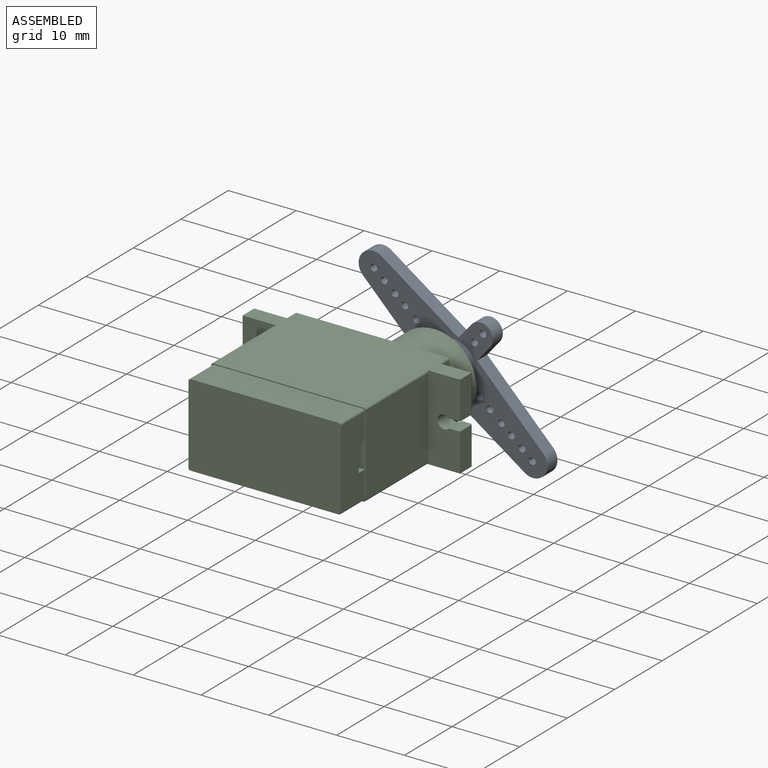
[diagram: assembled view]
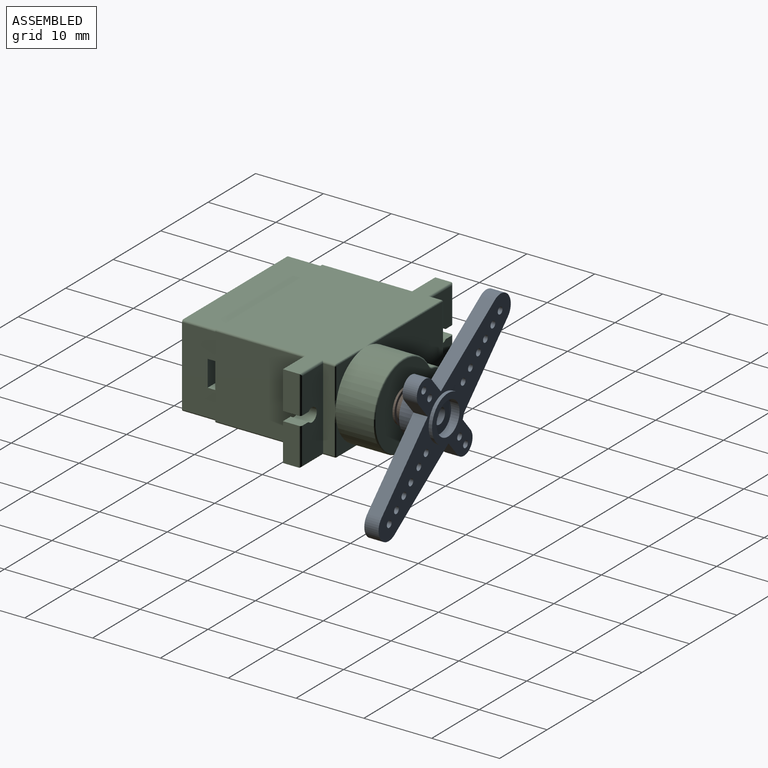
[diagram: assembled view, second angle]
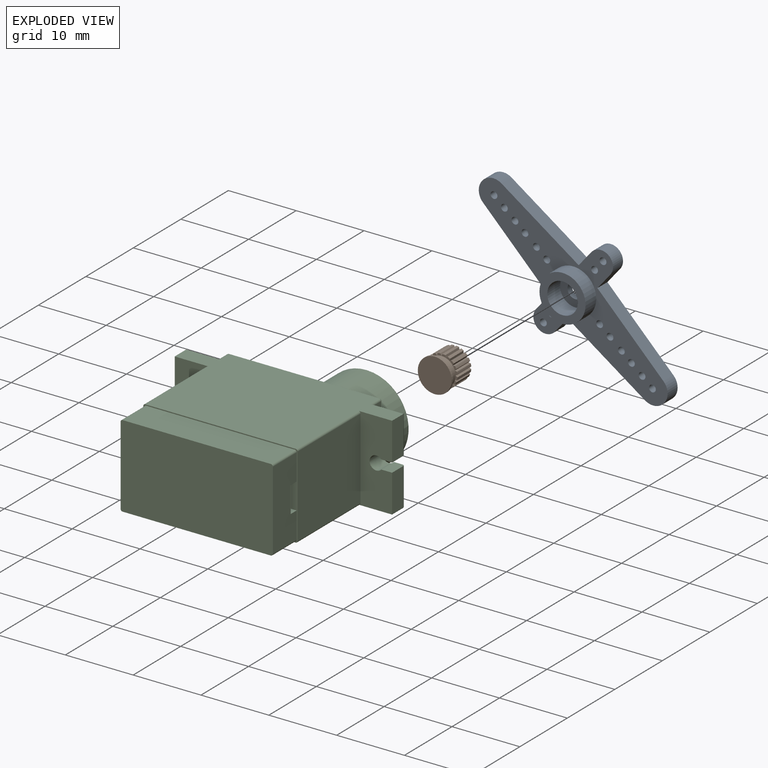
[diagram: exploded view]
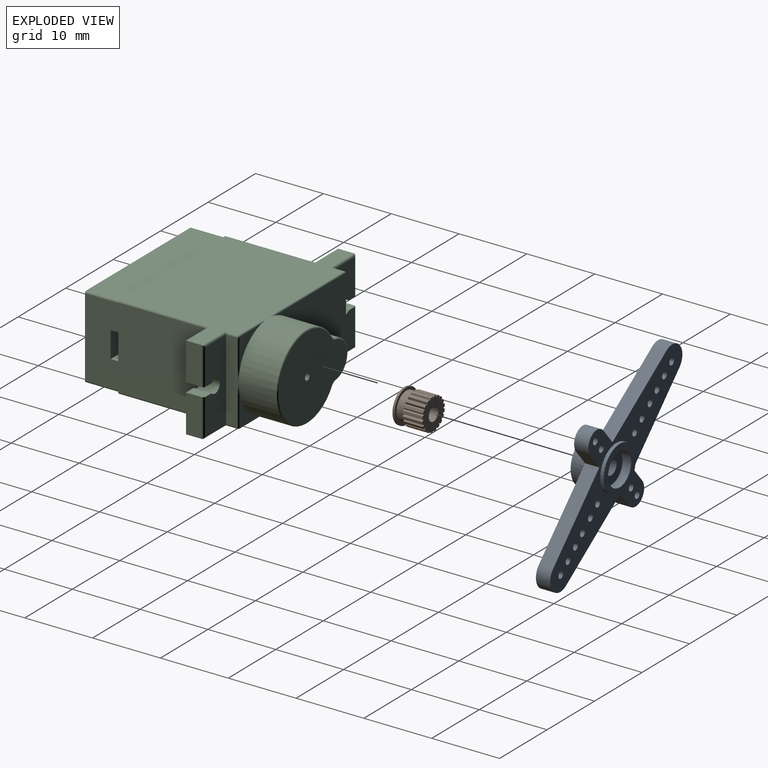
[diagram: exploded view, second angle]
ASSEMBLY  parts=3 mates=2
PART A: 39 faces, bbox 35x4.9x16.3 mm
  f0: plane 35x16.3mm, normal (0,-1,0), area 172.6mm2, adj f1,f2,f3,f4,f5,f6,f8,f9
  f1: plane 13.76x2.1mm, normal (-0.09,0,1), area 29mm2, adj f0,f5,f7,f11
  f2: plane 13.76x2.1mm, normal (0.09,0,1), area 29mm2, adj f0,f6,f7,f13
  f3: plane 13.76x2.1mm, normal (0.09,0,-1), area 29mm2, adj f0,f6,f7,f10
  f4: plane 13.76x2.1mm, normal (-0.09,0,-1), area 29mm2, adj f0,f5,f7,f9
  f5: cylinder r=2.14mm len=4.26mm, axis (0,-1,0), area 13.3mm2, adj f0,f1,f4,f7
  f6: cylinder r=2.14mm len=4.26mm, axis (0,-1,0), area 13.3mm2, adj f0,f2,f3,f7
  f7: plane 35x16.3mm, normal (0,1,0), area 172.1mm2, adj f1,f2,f3,f4,f5,f6,f8,f9
  f8: cylinder r=1.8mm len=3.6mm, axis (0,-1,0), area 11.9mm2, adj f0,f7,f9,f10
  f9: plane 2.94x2.1mm, normal (-1,0,0), area 6.2mm2, adj f0,f4,f7,f8
  f10: plane 2.94x2.1mm, normal (1,0,0), area 6.2mm2, adj f0,f3,f7,f8
  f11: plane 2.94x2.1mm, normal (-1,0,0), area 6.2mm2, adj f0,f1,f7,f12
  f12: cylinder r=1.8mm len=3.6mm, axis (0,-1,0), area 11.9mm2, adj f0,f7,f11,f13
  f13: plane 2.94x2.1mm, normal (1,0,0), area 6.2mm2, adj f0,f2,f7,f12
  f14: cylinder r=3.4mm len=6.8mm, axis (0,-1,0), area 48.1mm2, adj f7,f15
  f15: plane 6.8x6.8mm, normal (0,1,0), area 20.4mm2, adj f14,f16
  f16: cylinder r=2.25mm len=4.5mm, axis (0,1,0), area 38.2mm2, adj f15,f17
  f17: plane 4.5x4.5mm, normal (0,1,0), area 11.7mm2, adj f16,f20
  f18: cylinder r=2.43mm len=4.85mm, axis (0,-1,0), area 19mm2, adj f19,f21
  f19: plane 4.85x4.85mm, normal (0,-1,0), area 14.3mm2, adj f18,f20
  f20: cylinder r=1.15mm len=2.3mm, axis (0,1,0), area 6.5mm2, adj f17,f19
  f21: plane 6.75x6.75mm, normal (0,-1,0), area 17.3mm2, adj f18,f22
  f22: cylinder r=3.38mm len=6.75mm, axis (0,1,0), area 10.6mm2, adj f0,f21
  f23: cylinder r=0.5mm len=2.1mm, axis (0,1,0), area 6.6mm2, adj f0,f7
  f24: cylinder r=0.5mm len=2.1mm, axis (0,1,0), area 6.6mm2, adj f0,f7
  f25: cylinder r=0.5mm len=2.1mm, axis (0,1,0), area 6.6mm2, adj f0,f7
  f26: cylinder r=0.5mm len=2.1mm, axis (0,1,0), area 6.6mm2, adj f0,f7
  f27: cylinder r=0.5mm len=2.1mm, axis (0,1,0), area 6.6mm2, adj f0,f7
  f28: cylinder r=0.5mm len=2.1mm, axis (0,1,0), area 6.6mm2, adj f0,f7
  f29: cylinder r=0.5mm len=2.1mm, axis (0,1,0), area 6.6mm2, adj f0,f7
  f30: cylinder r=0.5mm len=2.1mm, axis (0,1,0), area 6.6mm2, adj f0,f7
  f31: cylinder r=0.5mm len=2.1mm, axis (0,1,0), area 6.6mm2, adj f0,f7
  f32: cylinder r=0.5mm len=2.1mm, axis (0,1,0), area 6.6mm2, adj f0,f7
  f33: cylinder r=0.5mm len=2.1mm, axis (0,1,0), area 6.6mm2, adj f0,f7
  f34: cylinder r=0.5mm len=2.1mm, axis (0,1,0), area 6.6mm2, adj f0,f7
  f35: cylinder r=0.5mm len=2.1mm, axis (0,1,0), area 6.6mm2, adj f0,f7
  f36: cylinder r=0.5mm len=2.1mm, axis (0,1,0), area 6.6mm2, adj f0,f7
  f37: cylinder r=0.5mm len=2.1mm, axis (0,1,0), area 6.6mm2, adj f0,f7
  f38: cylinder r=0.5mm len=2.1mm, axis (0,1,0), area 6.6mm2, adj f0,f7
PART B: 107 faces, bbox 5x4.3x5 mm
  f0: cylinder r=2.38mm len=2.9mm, axis (0,-1,0), area 1.2mm2, adj f1,f43,f103,f105
  f1: plane 0.61x0.52mm, normal (0,-1,0), area 0.2mm2, adj f0,f41,f103,f105
  f2: cylinder r=2.38mm len=2.9mm, axis (0,-1,0), area 1.2mm2, adj f3,f43,f100,f102
  f3: plane 0.59x0.59mm, normal (0,-1,0), area 0.2mm2, adj f2,f41,f100,f102
  f4: cylinder r=2.38mm len=2.9mm, axis (0,-1,0), area 1.2mm2, adj f5,f43,f97,f99
  f5: plane 0.61x0.52mm, normal (0,-1,0), area 0.2mm2, adj f4,f41,f97,f99
  f6: cylinder r=2.38mm len=2.9mm, axis (0,-1,0), area 1.2mm2, adj f7,f43,f94,f96
  f7: plane 0.63x0.39mm, normal (0,-1,0), area 0.2mm2, adj f6,f41,f94,f96
  f8: cylinder r=2.38mm len=2.9mm, axis (0,-1,0), area 1.2mm2, adj f9,f43,f91,f93
  f9: plane 0.63x0.39mm, normal (0,-1,0), area 0.2mm2, adj f8,f41,f91,f93
  f10: cylinder r=2.38mm len=2.9mm, axis (0,-1,0), area 1.2mm2, adj f11,f43,f88,f90
  f11: plane 0.61x0.52mm, normal (0,-1,0), area 0.2mm2, adj f10,f41,f88,f90
  f12: cylinder r=2.38mm len=2.9mm, axis (0,-1,0), area 1.2mm2, adj f13,f43,f85,f87
  f13: plane 0.59x0.59mm, normal (0,-1,0), area 0.2mm2, adj f12,f41,f85,f87
  f14: cylinder r=2.38mm len=2.9mm, axis (0,-1,0), area 1.2mm2, adj f15,f43,f82,f84
  f15: plane 0.61x0.52mm, normal (0,-1,0), area 0.2mm2, adj f14,f41,f82,f84
  f16: cylinder r=2.38mm len=2.9mm, axis (0,-1,0), area 1.2mm2, adj f17,f43,f79,f81
  f17: plane 0.63x0.39mm, normal (0,-1,0), area 0.2mm2, adj f16,f41,f79,f81
  f18: cylinder r=2.38mm len=2.9mm, axis (0,-1,0), area 1.2mm2, adj f19,f43,f76,f78
  f19: plane 0.63x0.39mm, normal (0,-1,0), area 0.2mm2, adj f18,f41,f76,f78
  f20: cylinder r=2.38mm len=2.9mm, axis (0,-1,0), area 1.2mm2, adj f21,f43,f73,f75
  f21: plane 0.61x0.52mm, normal (0,-1,0), area 0.2mm2, adj f20,f41,f73,f75
  f22: cylinder r=2.38mm len=2.9mm, axis (0,-1,0), area 1.2mm2, adj f23,f43,f70,f72
  f23: plane 0.59x0.59mm, normal (0,-1,0), area 0.2mm2, adj f22,f41,f70,f72
  f24: cylinder r=2.38mm len=2.9mm, axis (0,-1,0), area 1.2mm2, adj f25,f43,f67,f69
  f25: plane 0.61x0.52mm, normal (0,-1,0), area 0.2mm2, adj f24,f41,f67,f69
  f26: cylinder r=2.38mm len=2.9mm, axis (0,-1,0), area 1.2mm2, adj f27,f43,f64,f66
  f27: plane 0.63x0.39mm, normal (0,-1,0), area 0.2mm2, adj f26,f41,f64,f66
  f28: cylinder r=2.38mm len=2.9mm, axis (0,-1,0), area 1.2mm2, adj f29,f43,f61,f63
  f29: plane 0.63x0.39mm, normal (0,-1,0), area 0.2mm2, adj f28,f41,f61,f63
  f30: cylinder r=2.38mm len=2.9mm, axis (0,-1,0), area 1.2mm2, adj f31,f43,f58,f60
  f31: plane 0.61x0.52mm, normal (0,-1,0), area 0.2mm2, adj f30,f41,f58,f60
  f32: cylinder r=2.38mm len=2.9mm, axis (0,-1,0), area 1.2mm2, adj f33,f43,f55,f57
  f33: plane 0.59x0.59mm, normal (0,-1,0), area 0.2mm2, adj f32,f41,f55,f57
  f34: cylinder r=2.38mm len=2.9mm, axis (0,-1,0), area 1.2mm2, adj f35,f43,f52,f54
  f35: plane 0.61x0.52mm, normal (0,-1,0), area 0.2mm2, adj f34,f41,f52,f54
  f36: cylinder r=2.38mm len=2.9mm, axis (0,-1,0), area 1.2mm2, adj f37,f43,f49,f51
  f37: plane 0.63x0.39mm, normal (0,-1,0), area 0.2mm2, adj f36,f41,f49,f51
  f38: cylinder r=2.5mm len=5mm, axis (0,-1,0), area 4.7mm2, adj f39,f40
  f39: plane 5x5mm, normal (0,1,0), area 6.1mm2, adj f38,f41
  f40: plane 5x5mm, normal (0,-1,0), area 19.6mm2, adj f38
  f41: cylinder r=2.08mm len=4.15mm, axis (0,-1,0), area 14.3mm2, adj f1,f3,f5,f7,f9,f11,f13,f15
  f42: cylinder r=2.38mm len=2.9mm, axis (0,-1,0), area 1.2mm2, adj f43,f44,f48,f106
  f43: plane 4.74x4.74mm, normal (0,1,0), area 13.5mm2, adj f0,f2,f4,f6,f8,f10,f12,f14
  f44: plane 0.63x0.39mm, normal (0,-1,0), area 0.2mm2, adj f41,f42,f48,f106
  f45: cylinder r=1mm len=3.5mm, axis (0,1,0), area 22mm2, adj f43,f46
  f46: plane 2x2mm, normal (0,1,0), area 3.1mm2, adj f45
  f47: plane 0.01x0.01mm, normal (0,1,0), area 0mm2, adj f41,f48,f49
  f48: plane 2.9x0.3mm, normal (-0.87,0,-0.49), area 1mm2, adj f42,f43,f44,f47,f49
  f49: plane 2.9x0.3mm, normal (0.87,0,-0.49), area 1mm2, adj f36,f37,f43,f47,f48
  f50: plane 0.01x0.01mm, normal (0,1,0), area 0mm2, adj f41,f51,f52
  f51: plane 2.9x0.34mm, normal (-0.98,0,-0.2), area 1mm2, adj f36,f37,f43,f50,f52
  f52: plane 2.9x0.25mm, normal (0.67,0,-0.74), area 1mm2, adj f34,f35,f43,f50,f51
  f53: plane 0.01x0.01mm, normal (0,1,0), area 0mm2, adj f41,f54,f55
  f54: plane 2.9x0.34mm, normal (-0.99,0,0.11), area 1mm2, adj f34,f35,f43,f53,f55
  f55: plane 2.9x0.31mm, normal (0.41,0,-0.91), area 1mm2, adj f32,f33,f43,f53,f54
  f56: plane 0.01x0.01mm, normal (0,1,0), area 0mm2, adj f41,f57,f58
  f57: plane 2.9x0.31mm, normal (-0.91,0,0.41), area 1mm2, adj f32,f33,f43,f56,f58
  f58: plane 2.9x0.34mm, normal (0.11,0,-0.99), area 1mm2, adj f30,f31,f43,f56,f57
  f59: plane 0.01x0.01mm, normal (0,1,0), area 0mm2, adj f41,f60,f61
  f60: plane 2.9x0.25mm, normal (-0.74,0,0.67), area 1mm2, adj f30,f31,f43,f59,f61
  f61: plane 2.9x0.34mm, normal (-0.2,0,-0.98), area 1mm2, adj f28,f29,f43,f59,f60
  f62: plane 0.01x0.01mm, normal (0,1,0), area 0mm2, adj f41,f63,f64
  f63: plane 2.9x0.3mm, normal (-0.49,0,0.87), area 1mm2, adj f28,f29,f43,f62,f64
  f64: plane 2.9x0.3mm, normal (-0.49,0,-0.87), area 1mm2, adj f26,f27,f43,f62,f63
  f65: plane 0.01x0.01mm, normal (0,1,0), area 0mm2, adj f41,f66,f67
  f66: plane 2.9x0.34mm, normal (-0.2,0,0.98), area 1mm2, adj f26,f27,f43,f65,f67
  f67: plane 2.9x0.25mm, normal (-0.74,0,-0.67), area 1mm2, adj f24,f25,f43,f65,f66
  f68: plane 0.01x0.01mm, normal (0,1,0), area 0mm2, adj f41,f69,f70
  f69: plane 2.9x0.34mm, normal (0.11,0,0.99), area 1mm2, adj f24,f25,f43,f68,f70
  f70: plane 2.9x0.31mm, normal (-0.91,0,-0.41), area 1mm2, adj f22,f23,f43,f68,f69
  f71: plane 0.01x0.01mm, normal (0,1,0), area 0mm2, adj f41,f72,f73
  f72: plane 2.9x0.31mm, normal (0.41,0,0.91), area 1mm2, adj f22,f23,f43,f71,f73
  f73: plane 2.9x0.34mm, normal (-0.99,0,-0.11), area 1mm2, adj f20,f21,f43,f71,f72
  f74: plane 0.01x0.01mm, normal (0,1,0), area 0mm2, adj f41,f75,f76
  f75: plane 2.9x0.25mm, normal (0.67,0,0.74), area 1mm2, adj f20,f21,f43,f74,f76
  f76: plane 2.9x0.34mm, normal (-0.98,0,0.2), area 1mm2, adj f18,f19,f43,f74,f75
  f77: plane 0.01x0.01mm, normal (0,1,0), area 0mm2, adj f41,f78,f79
  f78: plane 2.9x0.3mm, normal (0.87,0,0.49), area 1mm2, adj f18,f19,f43,f77,f79
  f79: plane 2.9x0.3mm, normal (-0.87,0,0.49), area 1mm2, adj f16,f17,f43,f77,f78
  f80: plane 0.01x0.01mm, normal (0,1,0), area 0mm2, adj f41,f81,f82
  f81: plane 2.9x0.34mm, normal (0.98,0,0.2), area 1mm2, adj f16,f17,f43,f80,f82
  f82: plane 2.9x0.25mm, normal (-0.67,0,0.74), area 1mm2, adj f14,f15,f43,f80,f81
  f83: plane 0.01x0.01mm, normal (0,1,0), area 0mm2, adj f41,f84,f85
  f84: plane 2.9x0.34mm, normal (0.99,0,-0.11), area 1mm2, adj f14,f15,f43,f83,f85
  f85: plane 2.9x0.31mm, normal (-0.41,0,0.91), area 1mm2, adj f12,f13,f43,f83,f84
  f86: plane 0.01x0.01mm, normal (0,1,0), area 0mm2, adj f41,f87,f88
  f87: plane 2.9x0.31mm, normal (0.91,0,-0.41), area 1mm2, adj f12,f13,f43,f86,f88
  f88: plane 2.9x0.34mm, normal (-0.11,0,0.99), area 1mm2, adj f10,f11,f43,f86,f87
  f89: plane 0.01x0.01mm, normal (0,1,0), area 0mm2, adj f41,f90,f91
  f90: plane 2.9x0.25mm, normal (0.74,0,-0.67), area 1mm2, adj f10,f11,f43,f89,f91
  f91: plane 2.9x0.34mm, normal (0.2,0,0.98), area 1mm2, adj f8,f9,f43,f89,f90
  f92: plane 0.01x0.01mm, normal (0,1,0), area 0mm2, adj f41,f93,f94
  f93: plane 2.9x0.3mm, normal (0.49,0,-0.87), area 1mm2, adj f8,f9,f43,f92,f94
  f94: plane 2.9x0.3mm, normal (0.49,0,0.87), area 1mm2, adj f6,f7,f43,f92,f93
  f95: plane 0.01x0.01mm, normal (0,1,0), area 0mm2, adj f41,f96,f97
  f96: plane 2.9x0.34mm, normal (0.2,0,-0.98), area 1mm2, adj f6,f7,f43,f95,f97
  f97: plane 2.9x0.25mm, normal (0.74,0,0.67), area 1mm2, adj f4,f5,f43,f95,f96
  f98: plane 0.01x0.01mm, normal (0,1,0), area 0mm2, adj f41,f99,f100
  f99: plane 2.9x0.34mm, normal (-0.11,0,-0.99), area 1mm2, adj f4,f5,f43,f98,f100
  f100: plane 2.9x0.31mm, normal (0.91,0,0.41), area 1mm2, adj f2,f3,f43,f98,f99
  f101: plane 0.01x0.01mm, normal (0,1,0), area 0mm2, adj f41,f102,f103
  f102: plane 2.9x0.31mm, normal (-0.41,0,-0.91), area 1mm2, adj f2,f3,f43,f101,f103
  f103: plane 2.9x0.34mm, normal (0.99,0,0.11), area 1mm2, adj f0,f1,f43,f101,f102
  f104: plane 0.01x0.01mm, normal (0,1,0), area 0mm2, adj f41,f105,f106
  f105: plane 2.9x0.25mm, normal (-0.67,0,-0.74), area 1mm2, adj f0,f1,f43,f104,f106
  f106: plane 2.9x0.34mm, normal (0.98,0,-0.2), area 1mm2, adj f42,f43,f44,f104,f105
PART C: 81 faces, bbox 32.1x28.5x13.5 mm
  f0: plane 5.58x2.35mm, normal (-1,0,0), area 13.1mm2, adj f1,f10,f19,f80
  f1: cylinder r=0.3mm len=5.58mm, axis (0,0,-1), area 2.6mm2, adj f0,f18,f45,f80
  f2: plane 5.58x2.35mm, normal (1,0,0), area 13.1mm2, adj f3,f10,f16,f78
  f3: cylinder r=0.3mm len=5.58mm, axis (0,0,1), area 2.6mm2, adj f2,f15,f38,f78
  f4: cylinder r=6.25mm len=12.5mm, axis (0,-1,0), area 179.7mm2, adj f5,f6,f13,f50,f51,f54,f56,f59
  f5: plane 4.48x4.48mm, normal (0,1,0), area 6.3mm2, adj f4,f69,f70,f72
  f6: plane 4.48x4.48mm, normal (0,1,0), area 6.3mm2, adj f4,f64,f65,f66
  f7: plane 13.25x11.9mm, normal (-1,0,0), area 157.7mm2, adj f19,f20,f46,f47
  f8: plane 13.25x11.9mm, normal (1,0,0), area 157.7mm2, adj f16,f20,f48,f49
  f9: plane 32.05x17.75mm, normal (0,0,1), area 412.2mm2, adj f14,f16,f17,f19,f20,f37,f39,f41
  f10: plane 32.05x17.75mm, normal (0,0,-1), area 412.2mm2, adj f0,f2,f16,f19,f20,f36,f38,f44
  f11: plane 11.9x1.65mm, normal (-1,0,0), area 19.6mm2, adj f18,f41,f44,f60
  f12: plane 11.9x1.85mm, normal (1,0,0), area 19.9mm2, adj f15,f36,f37,f63,f64,f71,f72
  f13: plane 14.73x12.1mm, normal (0,1,0), area 125.2mm2, adj f4,f31,f50,f51,f57,f58,f60,f61
  f14: plane 5.58x2.35mm, normal (1,0,0), area 13.1mm2, adj f9,f16,f40,f77
  f15: plane 11.9x4.35mm, normal (0,1,0), area 47.1mm2, adj f3,f12,f38,f39,f40,f75,f77,f78
  f16: plane 12.5x4.95mm, normal (0,-1,0), area 53.1mm2, adj f2,f8,f9,f10,f14,f48,f49,f75
  f17: plane 5.58x2.35mm, normal (-1,0,0), area 13.1mm2, adj f9,f19,f43,f79
  f18: plane 11.9x4.35mm, normal (0,1,0), area 47.1mm2, adj f1,f11,f42,f43,f45,f76,f79,f80
  f19: plane 12.5x4.95mm, normal (0,-1,0), area 53.1mm2, adj f0,f7,f9,f10,f17,f46,f47,f76
  f20: plane 22.75x12.5mm, normal (0,-1,0), area 18.2mm2, adj f7,f8,f9,f10,f21,f22,f23,f24
  f21: plane 21.85x5mm, normal (0,0,-1), area 109.3mm2, adj f20,f25,f34,f35
  f22: plane 11.6x5mm, normal (-1,0,0), area 58mm2, adj f20,f25,f33,f34
  f23: plane 21.85x5mm, normal (0,0,1), area 109.3mm2, adj f20,f25,f32,f33
  f24: plane 11.6x5mm, normal (1,0,0), area 53.3mm2, adj f20,f25,f26,f27,f28,f32,f35
  f25: plane 22.45x12.2mm, normal (0,-1,0), area 273.8mm2, adj f21,f22,f23,f24,f32,f33,f34,f35
  f26: plane 2x1.23mm, normal (0,0,-1), area 2.5mm2, adj f20,f24,f28,f29
  f27: plane 2x1.23mm, normal (0,0,1), area 2.5mm2, adj f20,f24,f28,f29
  f28: plane 3.85x2mm, normal (0,1,0), area 7.7mm2, adj f24,f26,f27,f29
  f29: plane 3.85x1.23mm, normal (1,0,0), area 4.7mm2, adj f20,f26,f27,f28
  f30: plane 14.43x12.1mm, normal (0,1,0), area 124.6mm2, adj f52,f53,f54,f55,f73
  f31: cylinder r=2.82mm len=5.62mm, axis (0,-1,0), area 45.8mm2, adj f13,f50,f51,f53
  f32: cylinder r=0.3mm len=5mm, axis (0,-1,0), area 2.4mm2, adj f20,f23,f24,f25
  f33: cylinder r=0.3mm len=5mm, axis (0,-1,0), area 2.4mm2, adj f20,f22,f23,f25
  f34: cylinder r=0.3mm len=5mm, axis (0,-1,0), area 2.4mm2, adj f20,f21,f22,f25
  f35: cylinder r=0.3mm len=5mm, axis (0,-1,0), area 2.4mm2, adj f20,f21,f24,f25
  f36: cylinder r=0.3mm len=1.95mm, axis (0,1,0), area 0.8mm2, adj f10,f12,f38,f65
  f37: cylinder r=0.3mm len=1.95mm, axis (0,-1,0), area 0.8mm2, adj f9,f12,f39,f70
  f38: cylinder r=0.3mm len=4.95mm, axis (1,0,0), area 2.2mm2, adj f3,f10,f15,f36
  f39: cylinder r=0.3mm len=4.95mm, axis (1,0,0), area 2.2mm2, adj f9,f15,f37,f40
  f40: cylinder r=0.3mm len=5.58mm, axis (0,0,1), area 2.6mm2, adj f14,f15,f39,f77
  f41: cylinder r=0.3mm len=1.95mm, axis (0,1,0), area 0.8mm2, adj f9,f11,f42,f62
  f42: cylinder r=0.3mm len=4.95mm, axis (1,0,0), area 2.2mm2, adj f9,f18,f41,f43
  f43: cylinder r=0.3mm len=5.58mm, axis (0,0,-1), area 2.6mm2, adj f17,f18,f42,f79
  f44: cylinder r=0.3mm len=1.95mm, axis (0,-1,0), area 0.8mm2, adj f10,f11,f45,f58
  f45: cylinder r=0.3mm len=4.95mm, axis (1,0,0), area 2.2mm2, adj f1,f10,f18,f44
  f46: cylinder r=0.3mm len=13.25mm, axis (0,1,0), area 6.2mm2, adj f7,f9,f19,f20
  f47: cylinder r=0.3mm len=13.25mm, axis (0,-1,0), area 6.2mm2, adj f7,f10,f19,f20
  f48: cylinder r=0.3mm len=13.25mm, axis (0,-1,0), area 6.2mm2, adj f8,f9,f16,f20
  f49: cylinder r=0.3mm len=13.25mm, axis (0,1,0), area 6.2mm2, adj f8,f10,f16,f20
  f50: cylinder r=1mm len=5.55mm, axis (0,1,0), area 5mm2, adj f4,f13,f31,f52
  f51: cylinder r=1mm len=5.55mm, axis (0,-1,0), area 5mm2, adj f4,f13,f31,f55
  f52: torus R=1.2mm, axis (0,1,0), area 0.3mm2, adj f30,f50,f53,f54
  f53: torus R=2.62mm, axis (0,1,0), area 2.5mm2, adj f30,f31,f52,f55
  f54: torus R=6.05mm, axis (0,1,0), area 10.1mm2, adj f4,f30,f52,f55
  f55: torus R=1.2mm, axis (0,1,0), area 0.3mm2, adj f30,f51,f53,f54
  f56: bspline ~1.73x0.25mm, area 0.2mm2, adj f4,f10,f57
  f57: cylinder r=0.2mm len=14.63mm, axis (-1,0,0), area 4.6mm2, adj f10,f13,f56,f58
  f58: torus R=0.1mm, axis (0,-1,0), area 0.1mm2, adj f13,f44,f57,f60
  f59: bspline ~1.73x0.25mm, area 0.2mm2, adj f4,f9,f61
  f60: cylinder r=0.2mm len=11.9mm, axis (0,0,1), area 3.7mm2, adj f11,f13,f58,f62
  f61: cylinder r=0.2mm len=14.63mm, axis (1,0,0), area 4.6mm2, adj f9,f13,f59,f62
  f62: torus R=0.1mm, axis (0,-1,0), area 0.1mm2, adj f13,f41,f60,f61
  f63: bspline ~1.73x0.25mm, area 0.2mm2, adj f4,f12,f64
  f64: cylinder r=0.2mm len=4.38mm, axis (0,0,-1), area 1.4mm2, adj f6,f12,f63,f65
  f65: torus R=0.1mm, axis (0,-1,0), area 0.1mm2, adj f6,f36,f64,f66
  f66: cylinder r=0.2mm len=4.38mm, axis (-1,0,0), area 1.4mm2, adj f6,f10,f65,f67
  f67: bspline ~1.73x0.25mm, area 0.2mm2, adj f4,f10,f66
  f68: bspline ~1.73x0.25mm, area 0.2mm2, adj f4,f9,f69
  f69: cylinder r=0.2mm len=4.38mm, axis (1,0,0), area 1.4mm2, adj f5,f9,f68,f70
  f70: torus R=0.1mm, axis (0,-1,0), area 0.1mm2, adj f5,f37,f69,f72
  f71: bspline ~1.73x0.25mm, area 0.2mm2, adj f4,f12,f72
  f72: cylinder r=0.2mm len=4.38mm, axis (0,0,-1), area 1.4mm2, adj f5,f12,f70,f71
  f73: cylinder r=0.5mm len=2mm, axis (0,1,0), area 6.3mm2, adj f30,f74
  f74: plane 1x1mm, normal (0,1,0), area 0.8mm2, adj f73
  f75: cylinder r=1mm len=2.65mm, axis (0,1,0), area 12.7mm2, adj f15,f16,f77,f78
  f76: cylinder r=1mm len=2.65mm, axis (0,1,0), area 12.7mm2, adj f18,f19,f79,f80
  f77: plane 2.65x1.59mm, normal (0,0,-1), area 4.2mm2, adj f14,f15,f16,f40,f75
  f78: plane 2.65x1.59mm, normal (0,0,1), area 4.2mm2, adj f2,f3,f15,f16,f75
  f79: plane 2.65x1.59mm, normal (0,0,-1), area 4.2mm2, adj f17,f18,f19,f43,f76
  f80: plane 2.65x1.59mm, normal (0,0,1), area 4.2mm2, adj f0,f1,f18,f19,f76
PLACE A rot(axis=(0.94,0,-0.34),180deg) t=(16.5,34.45,-6.25)mm
PLACE B t=(16.5,28.5,-6.25)mm
PLACE C at identity fixed
MATE fastened B.f0 <-> C.f4  axis (0,-1,0) through (16.5,28.5,-6.25)mm
MATE revolute A.f14 <-> B.f0  axis (0,-1,0) through (16.5,32.8,-6.25)mm
